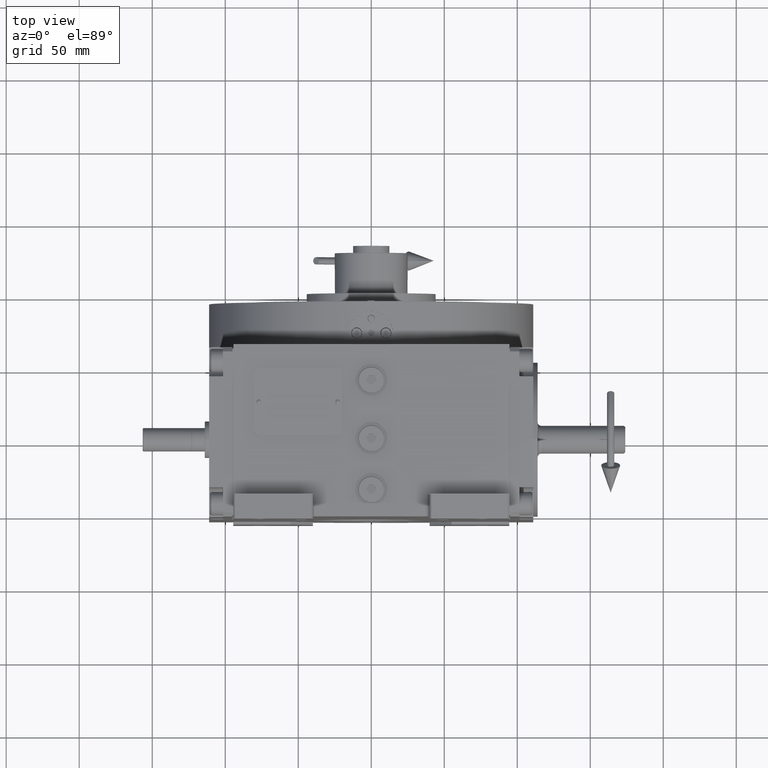
[diagram: clean part render]
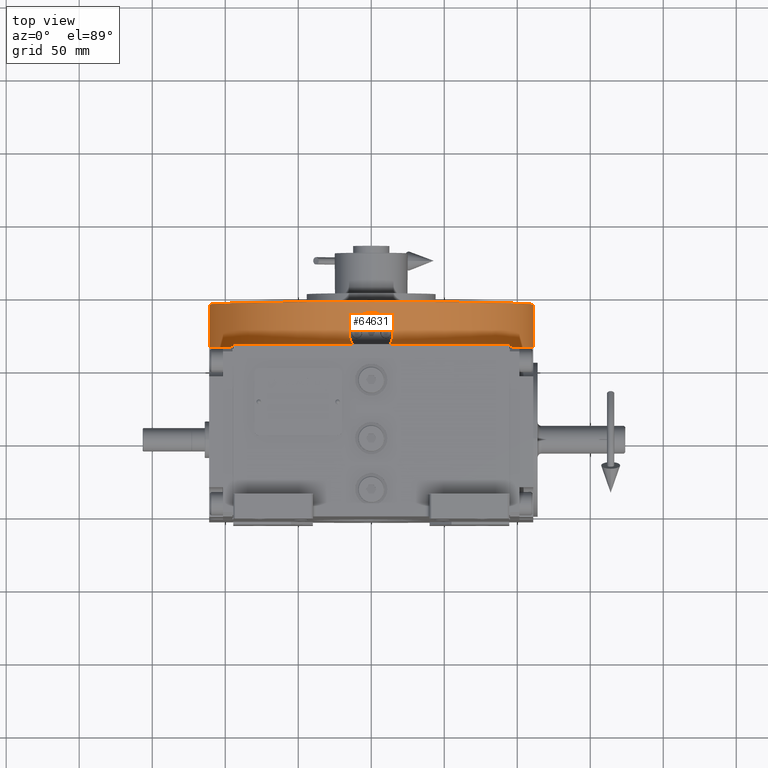
[diagram: same view with one face highlighted and labeled with its STEP entity id]
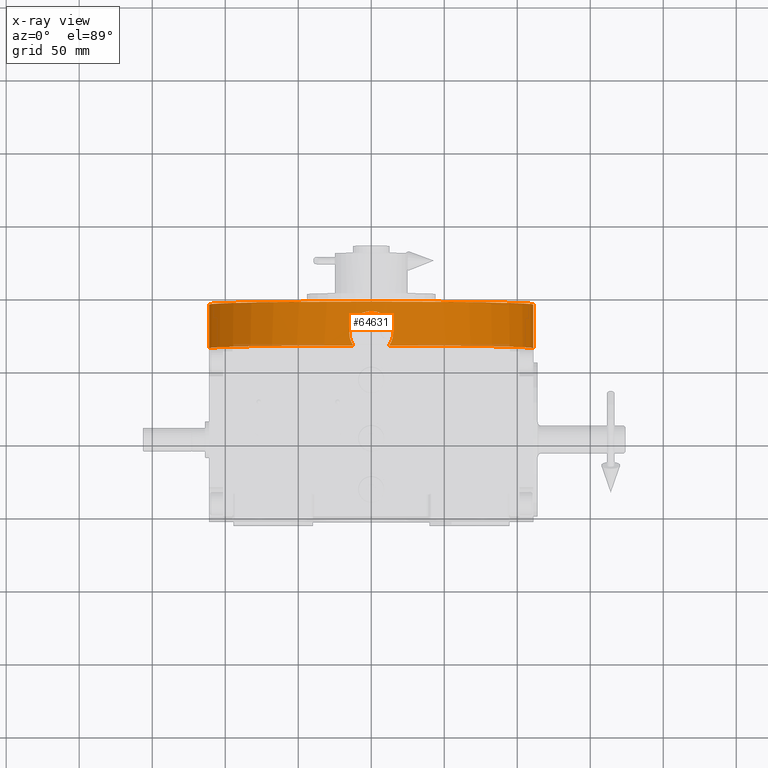
[diagram: x-ray of the same camera — body ghosted, the highlighted face saturated]
A machine part, top view. The second image highlights one B-rep face of the part: STEP entity #64631.
The next image is the same camera in x-ray: the body ghosted, the highlighted face saturated — about 3% of this face is hidden behind the body in this view.
In plain terms, the highlighted cylindrical surface (partial cylindrical patch) has radius 111 mm, axis along (0, -1, 0).
Its self-contained STEP definition (entity closure, byte-faithful):
#1288 = DIRECTION ( 'NONE',  ( 0.000000000000000000, 0.000000000000000000, 1.000000000000000000 ) ) ;
#1329 = CARTESIAN_POINT ( 'NONE',  ( 12.99501050598395757, -110.2369471174213515, 16.00826603433886675 ) ) ;
#2038 = CARTESIAN_POINT ( 'NONE',  ( 15.00016352440266054, -109.9819527780179982, 8.499999734383411720 ) ) ;
#2134 = DIRECTION ( 'NONE',  ( 0.000000000000000000, 0.000000000000000000, 1.000000000000000000 ) ) ;
#2343 = DIRECTION ( 'NONE',  ( 0.000000000000000000, 0.000000000000000000, 1.000000000000000000 ) ) ;
#2385 = CARTESIAN_POINT ( 'NONE',  ( 3.888704021194342886, -110.9328646191555379, 22.99538984600222236 ) ) ;
#2521 = CARTESIAN_POINT ( 'NONE',  ( -14.08270934551654818, -110.1030482703059334, 3.332271771852777231 ) ) ;
#3352 = CARTESIAN_POINT ( 'NONE',  ( 14.08267207994800607, -110.1030530331438797, 3.332153254856740965 ) ) ;
#4854 = VERTEX_POINT ( 'NONE', #55535 ) ;
#6314 = VECTOR ( 'NONE', #2343, 1000.000000000000000 ) ;
#6349 = CARTESIAN_POINT ( 'NONE',  ( -13.67115137196839925, -110.1550517433764327, 14.69277020048659743 ) ) ;
#6797 = DIRECTION ( 'NONE',  ( 0.1113442080568318032, -0.9937819012903167382, 0.000000000000000000 ) ) ;
#7045 = CARTESIAN_POINT ( 'NONE',  ( -7.930321500829421666, -110.7171062041697667, 21.24156919897702167 ) ) ;
#7394 = CARTESIAN_POINT ( 'NONE',  ( 12.49089272913521320, -110.2959706763026020, 16.84979656627309197 ) ) ;
#7753 = CARTESIAN_POINT ( 'NONE',  ( -0.9885946096268580785, -111.0000015359194805, 23.49999561208149856 ) ) ;
#8173 = EDGE_CURVE ( 'NONE', #44379, #49522, #50312, .T. ) ;
#8286 = VECTOR ( 'NONE', #1288, 1000.000000000000000 ) ;
#8644 = CARTESIAN_POINT ( 'NONE',  ( 15.00016352440266054, -109.9819527780179982, 8.499999734383411720 ) ) ;
#8972 = CARTESIAN_POINT ( 'NONE',  ( -111.0000000000000000, 4.531193156845210737E-15, 0.000000000000000000 ) ) ;
#9062 = CARTESIAN_POINT ( 'NONE',  ( 12.35920709430827813, -110.3097910432252036, 0.000000000000000000 ) ) ;
#10498 = ORIENTED_EDGE ( 'NONE', *, *, #28965, .T. ) ;
#11152 = DIRECTION ( 'NONE',  ( 0.000000000000000000, 0.000000000000000000, 1.000000000000000000 ) ) ;
#11503 = DIRECTION ( 'NONE',  ( -1.000000000000000000, 0.000000000000000000, 0.000000000000000000 ) ) ;
#11686 = CARTESIAN_POINT ( 'NONE',  ( -14.90453354374295891, -109.9949668255244433, 10.45730428033682813 ) ) ;
#12045 = CARTESIAN_POINT ( 'NONE',  ( 9.910851678336534576, -110.5588658279260699, 19.80277067397714319 ) ) ;
#12394 = CARTESIAN_POINT ( 'NONE',  ( 7.930576881569013636, -110.7170877096085917, 21.24141663976412531 ) ) ;
#12527 = CARTESIAN_POINT ( 'NONE',  ( -15.00022701432521544, -109.9817857171703821, 8.123627962369207367 ) ) ;
#12751 = CARTESIAN_POINT ( 'NONE',  ( -9.155039958905479835, -110.6248419871347437, 20.42335287459646409 ) ) ;
#12878 = CARTESIAN_POINT ( 'NONE',  ( -14.88662442570942801, -109.9972347522099341, 6.618314069757395224 ) ) ;
#13242 = CARTESIAN_POINT ( 'NONE',  ( -14.54855790297208529, -110.0426777389478588, 4.770800955029040225 ) ) ;
#13901 = DIRECTION ( 'NONE',  ( 0.000000000000000000, 0.000000000000000000, 1.000000000000000000 ) ) ;
#13951 = CARTESIAN_POINT ( 'NONE',  ( -13.16975709974512121, -110.2164510765917527, 1.282029642087554100 ) ) ;
#14282 = ORIENTED_EDGE ( 'NONE', *, *, #51176, .T. ) ;
#14433 = CARTESIAN_POINT ( 'NONE',  ( 14.54860699406517099, -110.0426713706116999, 4.770969639303558552 ) ) ;
#14773 = CARTESIAN_POINT ( 'NONE',  ( 13.66037569775399518, -110.1563492564877720, 2.292729208048653433 ) ) ;
#15119 = CARTESIAN_POINT ( 'NONE',  ( 14.88666930942510902, -109.9972286734328719, 6.618332331495905052 ) ) ;
#15441 = VERTEX_POINT ( 'NONE', #70724 ) ;
#15999 = VERTEX_POINT ( 'NONE', #8644 ) ;
#16155 = ORIENTED_EDGE ( 'NONE', *, *, #70464, .T. ) ;
#17069 = CARTESIAN_POINT ( 'NONE',  ( -15.00071831401526090, -109.9817187090293515, 9.481922053172867848 ) ) ;
#18129 = CARTESIAN_POINT ( 'NONE',  ( 7.505816495866817206, -110.7467874697829018, 21.49621537291856654 ) ) ;
#18261 = CARTESIAN_POINT ( 'NONE',  ( -14.01719661900627223, -110.1114117750709909, 3.156973181291049979 ) ) ;
#18840 = CARTESIAN_POINT ( 'NONE',  ( 3.408693875964971198, -110.9486936330835505, 23.11598592882078407 ) ) ;
#19360 = CARTESIAN_POINT ( 'NONE',  ( -111.0000000000000000, 4.531193156845210737E-15, 30.00000000000000000 ) ) ;
#20163 = CARTESIAN_POINT ( 'NONE',  ( 14.71746435414367937, -110.0200399874456991, 5.504056977119167193 ) ) ;
#20514 = CARTESIAN_POINT ( 'NONE',  ( 14.92905650393711525, -109.9914728157634443, 6.992198174230376928 ) ) ;
#21075 = CIRCLE ( 'NONE', #49632, 111.0000000000000000 ) ;
#21344 = CIRCLE ( 'NONE', #61337, 111.0000000000000142 ) ;
#21408 = CARTESIAN_POINT ( 'NONE',  ( -11.90806301232916375, -110.3598472896125315, 17.63546682239085683 ) ) ;
#22803 = CARTESIAN_POINT ( 'NONE',  ( 14.23434392197854237, -110.0841797345522082, 13.33443317041090204 ) ) ;
#23456 = VERTEX_POINT ( 'NONE', #54984 ) ;
#23511 = CARTESIAN_POINT ( 'NONE',  ( -6.639755865926522560, -110.8020839931811565, 21.95980936459933019 ) ) ;
#24209 = CARTESIAN_POINT ( 'NONE',  ( 11.28600025733720003, -110.4251965464134742, 18.39295342521940313 ) ) ;
#24291 = DIRECTION ( 'NONE',  ( -1.000000000000000000, -2.560514363099460107E-16, 0.000000000000000000 ) ) ;
#24557 = EDGE_CURVE ( 'NONE', #39315, #4854, #60075, .T. ) ;
#25142 = EDGE_CURVE ( 'NONE', #15441, #23456, #30962, .T. ) ;
#25518 = CARTESIAN_POINT ( 'NONE',  ( 15.00016352440266054, -109.9819527780179982, 8.499999734383411720 ) ) ;
#28536 = CARTESIAN_POINT ( 'NONE',  ( -3.408483206793232689, -110.9486999150929876, 23.11604407734272115 ) ) ;
#28883 = CARTESIAN_POINT ( 'NONE',  ( -7.505576193284977826, -110.7468035710190719, 21.49636203183942484 ) ) ;
#28965 = EDGE_CURVE ( 'NONE', #4854, #15999, #35795, .T. ) ;
#29009 = DIRECTION ( 'NONE',  ( 1.000000000000000000, 0.000000000000000000, 0.000000000000000000 ) ) ;
#29240 = CARTESIAN_POINT ( 'NONE',  ( 13.45989550771997934, -110.1811509321854885, 15.13875466142020265 ) ) ;
#29376 = CARTESIAN_POINT ( 'NONE',  ( -15.00018157460869617, -109.9817751208699832, 8.499999499349108589 ) ) ;
#29593 = CARTESIAN_POINT ( 'NONE',  ( 14.51900455847550653, -110.0465189228315950, 12.39434505026233069 ) ) ;
#29723 = DIRECTION ( 'NONE',  ( 0.000000000000000000, 0.000000000000000000, -1.000000000000000000 ) ) ;
#30962 = LINE ( 'NONE', #63866, #6314 ) ;
#32125 = CARTESIAN_POINT ( 'NONE',  ( -12.99490879206749483, -110.2369590043951462, 16.00846849540674555 ) ) ;
#32374 = AXIS2_PLACEMENT_3D ( 'NONE', #40440, #29723, #29009 ) ;
#32992 = ORIENTED_EDGE ( 'NONE', *, *, #45693, .T. ) ;
#33538 = CARTESIAN_POINT ( 'NONE',  ( -14.51887944269257957, -110.0465355512536831, 12.39498808193251556 ) ) ;
#33903 = CARTESIAN_POINT ( 'NONE',  ( 4.831313870564001078, -110.8958109121369517, 22.70931602902088997 ) ) ;
#34590 = CARTESIAN_POINT ( 'NONE',  ( 5.754785659470629255, -110.8534944668084847, 22.37888231139478279 ) ) ;
#35092 = CARTESIAN_POINT ( 'NONE',  ( -12.35920709430827813, -110.3097910432252036, 0.000000000000000000 ) ) ;
#35796 = CARTESIAN_POINT ( 'NONE',  ( -14.26736596312562000, -110.0792690963544942, 3.866874469922342072 ) ) ;
#35795 = B_SPLINE_CURVE_WITH_KNOTS ( 'NONE', 3,
 ( #66106, #17069, #11686, #33538, #55355, #6349, #48597, #32125, #70436, #21408, #67170, #50708, #56066, #12751, #7045, #28883, #23511, #45355, #61447, #50357, #28536, #51416, #7753, #44640, #39964, #18840, #2385, #33903, #34590, #66817, #18129, #12394, #56413, #12045, #56784, #24209, #61797, #7394, #1329, #29240, #46042, #22803, #29593, #51075, #50010, #2038 ),
 .UNSPECIFIED., .F., .F.,
 ( 4, 2, 2, 2, 1, 2, 2, 2, 2, 1, 2, 2, 2, 2, 2, 1, 2, 2, 2, 2, 1, 2, 2, 2, 4 ),
 ( 0.1385462487229669748, 0.1837282274512069824, 0.2289102061794469622, 0.2515011955435669799, 0.2740921849076868311, 0.2966831742718067932, 0.3192741636359266444, 0.3644561423641664022, 0.3870471317282862533, 0.4096381210924060490, 0.4322291104565259001, 0.4548200998206457513, 0.5000020785488854536, 0.5451840572771251558, 0.5677750466412448960, 0.5903660360053647471, 0.6129570253694845983, 0.6355480147336044494, 0.6807299934618441517, 0.7033209828259638918, 0.7259119721900836320, 0.7485029615542033721, 0.7710939509183232232, 0.8162759296465627035, 0.8614579083748022947 ),
 .UNSPECIFIED. ) ;
#35912 = CARTESIAN_POINT ( 'NONE',  ( 12.79061008394213061, -110.2614562685912318, 0.6300699406160799043 ) ) ;
#36611 = ORIENTED_EDGE ( 'NONE', *, *, #45803, .F. ) ;
#36968 = CARTESIAN_POINT ( 'NONE',  ( 14.20718950667104963, -110.0870551266231843, 3.685462657117693830 ) ) ;
#39315 = VERTEX_POINT ( 'NONE', #43820 ) ;
#39374 = FACE_OUTER_BOUND ( 'NONE', #64659, .T. ) ;
#39686 = ORIENTED_EDGE ( 'NONE', *, *, #24557, .T. ) ;
#39964 = CARTESIAN_POINT ( 'NONE',  ( 1.964787938511459942, -110.9867868697359228, 23.40400139933715451 ) ) ;
#40440 = CARTESIAN_POINT ( 'NONE',  ( 0.000000000000000000, 0.000000000000000000, 0.000000000000000000 ) ) ;
#42006 = CIRCLE ( 'NONE', #51164, 111.0000000000000000 ) ;
#43271 = CARTESIAN_POINT ( 'NONE',  ( -111.0000000000000000, 1.359357947053561722E-14, 0.000000000000000000 ) ) ;
#43603 = ORIENTED_EDGE ( 'NONE', *, *, #8173, .F. ) ;
#43820 = CARTESIAN_POINT ( 'NONE',  ( -12.35920709430827813, -110.3097910432252036, 0.000000000000000000 ) ) ;
#44379 = VERTEX_POINT ( 'NONE', #8972 ) ;
#44640 = CARTESIAN_POINT ( 'NONE',  ( 0.9889394874797470258, -110.9999984638126449, 23.50000436735705733 ) ) ;
#45109 = CYLINDRICAL_SURFACE ( 'NONE', #32374, 111.0000000000000000 ) ;
#45355 = CARTESIAN_POINT ( 'NONE',  ( -5.754673046354830568, -110.8535004859885618, 22.37892337038985247 ) ) ;
#45693 = EDGE_CURVE ( 'NONE', #15999, #46848, #48960, .T. ) ;
#45803 = EDGE_CURVE ( 'NONE', #49522, #23456, #21075, .T. ) ;
#46042 = CARTESIAN_POINT ( 'NONE',  ( 13.67120868968887670, -110.1550445810021444, 14.69266741368030260 ) ) ;
#46848 = VERTEX_POINT ( 'NONE', #9062 ) ;
#46999 = CARTESIAN_POINT ( 'NONE',  ( 14.98581507868787988, -109.9837541035309130, 7.744811308917086912 ) ) ;
#47353 = CARTESIAN_POINT ( 'NONE',  ( 13.88615082730066597, -110.1281404534645390, 2.806289983460267479 ) ) ;
#48597 = CARTESIAN_POINT ( 'NONE',  ( -13.45969729556516015, -110.1811750425752194, 15.13912647065042805 ) ) ;
#48960 = B_SPLINE_CURVE_WITH_KNOTS ( 'NONE', 3,
 ( #25518, #64155, #46999, #20514, #15119, #20163, #14433, #68833, #36968, #3352, #47353, #14773, #57736, #35912, #63807 ),
 .UNSPECIFIED., .F., .F.,
 ( 4, 2, 2, 2, 2, 1, 2, 4 ),
 ( 0.8614579083748022947, 0.8787756698279519663, 0.8960934312811017488, 0.9307289541874012029, 0.9393878349139760386, 0.9480467156405508744, 0.9653644770937005459, 1.000000000000000000 ),
 .UNSPECIFIED. ) ;
#49522 = VERTEX_POINT ( 'NONE', #19360 ) ;
#49632 = AXIS2_PLACEMENT_3D ( 'NONE', #55173, #11152, #11503 ) ;
#50010 = CARTESIAN_POINT ( 'NONE',  ( 15.00067630021842291, -109.9817244393827167, 9.482195243194965428 ) ) ;
#50312 = LINE ( 'NONE', #43271, #8286 ) ;
#50357 = CARTESIAN_POINT ( 'NONE',  ( -3.888354573746293230, -110.9328771847478237, 22.99548474712409885 ) ) ;
#50708 = CARTESIAN_POINT ( 'NONE',  ( -10.95345950841069538, -110.4587870611709519, 18.75960009898651748 ) ) ;
#50799 = CARTESIAN_POINT ( 'NONE',  ( -5.684341886080798963E-14, 5.684341886080798963E-14, 0.000000000000000000 ) ) ;
#51075 = CARTESIAN_POINT ( 'NONE',  ( 14.90452256169296419, -109.9949681922320792, 10.45750335553337784 ) ) ;
#51164 = AXIS2_PLACEMENT_3D ( 'NONE', #63646, #13901, #24291 ) ;
#51176 = EDGE_CURVE ( 'NONE', #44379, #39315, #42006, .T. ) ;
#51416 = CARTESIAN_POINT ( 'NONE',  ( -1.964708668282119763, -110.9867875124339633, 23.40400608141957761 ) ) ;
#53336 = ORIENTED_EDGE ( 'NONE', *, *, #25142, .T. ) ;
#54984 = CARTESIAN_POINT ( 'NONE',  ( 111.0000000000000000, 0.000000000000000000, 30.00000000000000000 ) ) ;
#55173 = CARTESIAN_POINT ( 'NONE',  ( 0.000000000000000000, 0.000000000000000000, 30.00000000000000000 ) ) ;
#55355 = CARTESIAN_POINT ( 'NONE',  ( -14.23437111462543214, -110.0841764135789163, 13.33441362819727338 ) ) ;
#55535 = CARTESIAN_POINT ( 'NONE',  ( -15.00018157460869617, -109.9817751208699832, 8.499999499349108589 ) ) ;
#56066 = CARTESIAN_POINT ( 'NONE',  ( -9.910765466444356520, -110.5588729355499993, 19.80286059959883715 ) ) ;
#56413 = CARTESIAN_POINT ( 'NONE',  ( 9.155131626163086622, -110.6248335917129850, 20.42328748179446407 ) ) ;
#56784 = CARTESIAN_POINT ( 'NONE',  ( 10.95369226189674272, -110.4587641356198588, 18.75934940849484178 ) ) ;
#56907 = CARTESIAN_POINT ( 'NONE',  ( -12.79060159067036118, -110.2614572201849654, 0.6300730862795717035 ) ) ;
#57627 = CARTESIAN_POINT ( 'NONE',  ( -14.98584238347753761, -109.9837503902704725, 7.745164755432570658 ) ) ;
#57736 = CARTESIAN_POINT ( 'NONE',  ( 13.16976447597570399, -110.2164501629939366, 1.282010985205253695 ) ) ;
#60075 = B_SPLINE_CURVE_WITH_KNOTS ( 'NONE', 3,
 ( #35092, #56907, #13951, #67651, #62276, #18261, #2521, #62635, #35796, #13242, #61922, #12878, #68367, #57627, #12527, #29376 ),
 .UNSPECIFIED., .F., .F.,
 ( 4, 2, 2, 2, 2, 2, 2, 4 ),
 ( 0.000000000000000000, 0.03463656218074172288, 0.05195484327111257739, 0.06061398381629800464, 0.06927312436148343189, 0.1039096865422251825, 0.1212279676325960925, 0.1385462487229669748 ),
 .UNSPECIFIED. ) ;
#61337 = AXIS2_PLACEMENT_3D ( 'NONE', #50799, #2134, #6797 ) ;
#61447 = CARTESIAN_POINT ( 'NONE',  ( -4.831113224141963869, -110.8958199698845419, 22.70937072224167252 ) ) ;
#61797 = CARTESIAN_POINT ( 'NONE',  ( 11.90814556711610095, -110.3598382713341550, 17.63536541623848208 ) ) ;
#61922 = CARTESIAN_POINT ( 'NONE',  ( -14.71739435327712187, -110.0200493689661130, 5.503857179243137665 ) ) ;
#62276 = CARTESIAN_POINT ( 'NONE',  ( -13.81090885456181283, -110.1375413436830115, 2.635180560142445394 ) ) ;
#62635 = CARTESIAN_POINT ( 'NONE',  ( -14.20723929514453765, -110.0870487048050421, 3.685604386667282295 ) ) ;
#63646 = CARTESIAN_POINT ( 'NONE',  ( 4.263256414560599853E-14, 2.842170943040399481E-14, 0.000000000000000000 ) ) ;
#63807 = CARTESIAN_POINT ( 'NONE',  ( 12.35920709430827813, -110.3097910432252036, 0.000000000000000000 ) ) ;
#63866 = CARTESIAN_POINT ( 'NONE',  ( 111.0000000000000000, 0.000000000000000000, 0.000000000000000000 ) ) ;
#64155 = CARTESIAN_POINT ( 'NONE',  ( 15.00019318453401596, -109.9817903311494263, 8.123535051293789166 ) ) ;
#64631 = ADVANCED_FACE ( 'NONE', ( #39374 ), #45109, .T. ) ;
#64659 = EDGE_LOOP ( 'NONE', ( #16155, #53336, #36611, #43603, #14282, #39686, #10498, #32992 ) ) ;
#66106 = CARTESIAN_POINT ( 'NONE',  ( -15.00018157460869617, -109.9817751208699832, 8.499999499349108589 ) ) ;
#66817 = CARTESIAN_POINT ( 'NONE',  ( 6.639902048379165755, -110.8020754179939900, 21.95972879247906917 ) ) ;
#67170 = CARTESIAN_POINT ( 'NONE',  ( -11.28584015030519616, -110.4252130203693980, 18.39312312461865417 ) ) ;
#67651 = CARTESIAN_POINT ( 'NONE',  ( -13.66038436090427233, -110.1563481902365282, 2.292789680092145677 ) ) ;
#68367 = CARTESIAN_POINT ( 'NONE',  ( -14.92902940756069263, -109.9914765006813866, 6.992278458960996090 ) ) ;
#68833 = CARTESIAN_POINT ( 'NONE',  ( 14.26734174738253635, -110.0792722425702692, 3.866814090078479982 ) ) ;
#70436 = CARTESIAN_POINT ( 'NONE',  ( -12.49084410289228764, -110.2959761393431251, 16.84988908953093656 ) ) ;
#70464 = EDGE_CURVE ( 'NONE', #46848, #15441, #21344, .T. ) ;
#70724 = CARTESIAN_POINT ( 'NONE',  ( 111.0000000000000000, 0.000000000000000000, 0.000000000000000000 ) ) ;